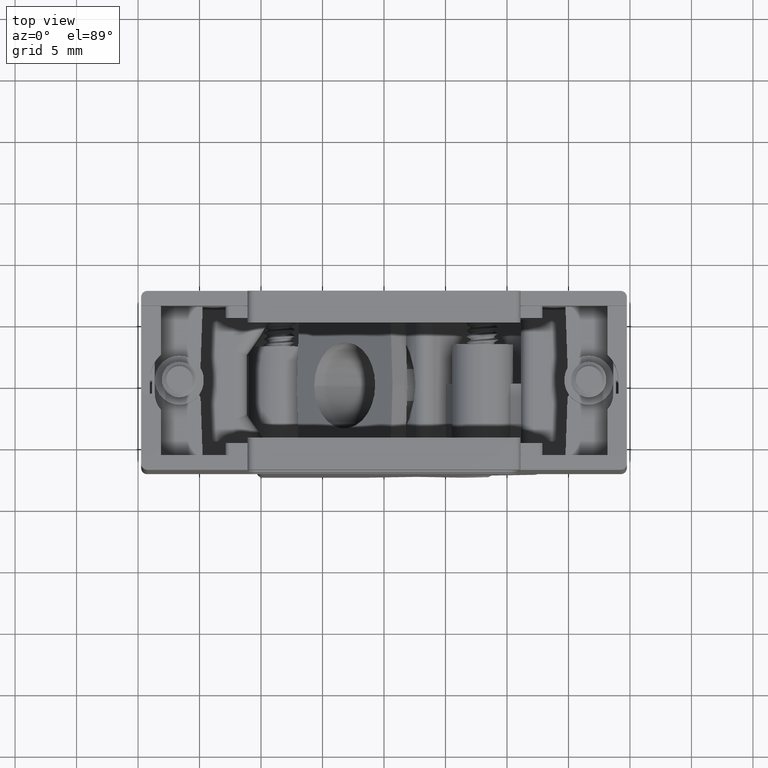
[diagram: clean part render]
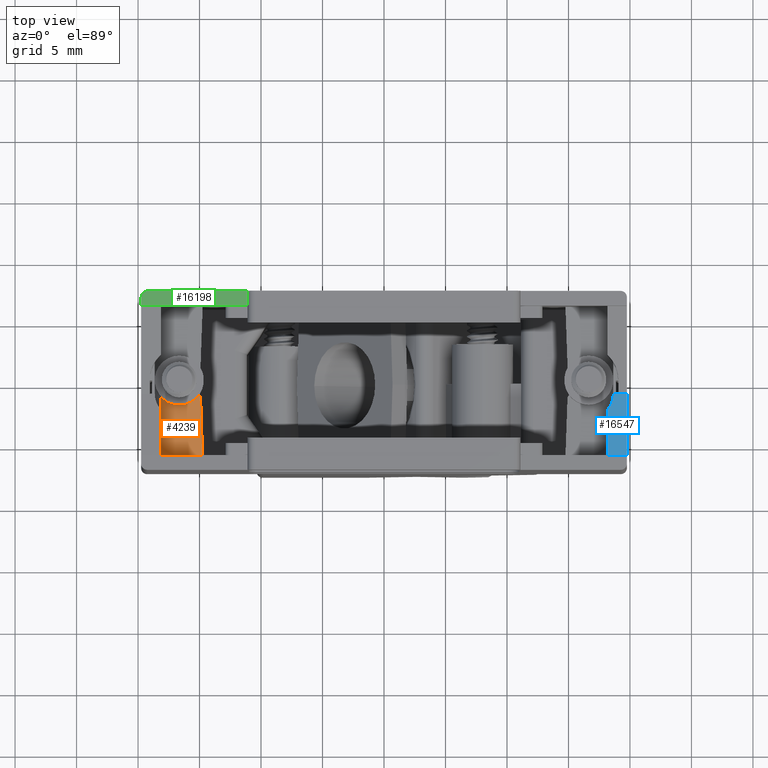
[diagram: same view with three faces highlighted in distinct colors, each labeled with its STEP entity id]
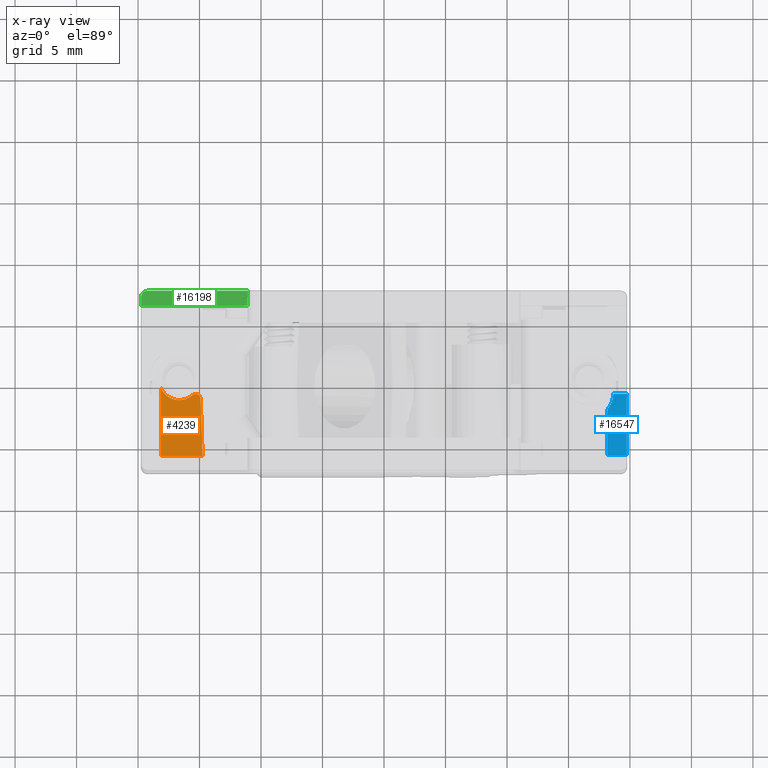
[diagram: x-ray of the same camera — body ghosted, the three highlighted faces saturated]
A machine part, top view with three faces highlighted in distinct colors.
The next image is the same camera in x-ray (body ghosted, the three faces saturated) — at least one of them is partly hidden behind the body in this view.
Their STEP definitions:

[orange] entity #4239 — the highlighted planar face has unit normal (-0, 0.0349, 0.9994).
#49 = AXIS2_PLACEMENT_3D ( 'NONE', #16739, #1539, #16954 ) ;
#364 = VERTEX_POINT ( 'NONE', #11180 ) ;
#439 = VECTOR ( 'NONE', #10934, 1000.000000000000000 ) ;
#567 = EDGE_CURVE ( 'NONE', #7004, #364, #17916, .T. ) ;
#825 = AXIS2_PLACEMENT_3D ( 'NONE', #6277, #13150, #3546 ) ;
#1382 = EDGE_CURVE ( 'NONE', #1838, #10347, #17587, .T. ) ;
#1440 = CARTESIAN_POINT ( 'NONE',  ( -14.91330625432113699, -1.473520738575691880, -5.163306254321136990 ) ) ;
#1518 = CARTESIAN_POINT ( 'NONE',  ( -18.14999999999999858, -1.149999999999999689, -5.174603847458740802 ) ) ;
#1521 = VECTOR ( 'NONE', #19870, 1000.000000000000000 ) ;
#1539 = DIRECTION ( 'NONE',  ( -2.549509896038091555E-16, 0.03489949670250105246, 0.9993908270190957621 ) ) ;
#1573 = CARTESIAN_POINT ( 'NONE',  ( -18.14999999999999858, -0.5574989676759432022, -5.195294439432151634 ) ) ;
#1741 = CARTESIAN_POINT ( 'NONE',  ( -15.58045006810301736, -1.189984429805355681, -5.173207560402246941 ) ) ;
#1790 = CARTESIAN_POINT ( 'NONE',  ( -18.14999999999999858, -1.149999999999999911, -5.174603847458739914 ) ) ;
#1838 = VERTEX_POINT ( 'NONE', #1741 ) ;
#1906 = VECTOR ( 'NONE', #4335, 1000.000000000000114 ) ;
#2705 = EDGE_CURVE ( 'NONE', #4343, #1838, #13568, .T. ) ;
#2899 = CARTESIAN_POINT ( 'NONE',  ( -16.23951330232864976, -1.782345993222722136, -5.152521838790378617 ) ) ;
#3029 = VECTOR ( 'NONE', #6708, 1000.000000000000114 ) ;
#3546 = DIRECTION ( 'NONE',  ( 0.000000000000000000, 0.9993908270190957621, -0.03489949670250123287 ) ) ;
#3767 = ORIENTED_EDGE ( 'NONE', *, *, #1382, .T. ) ;
#4239 = ADVANCED_FACE ( 'NONE', ( #9898 ), #10114, .T. ) ;
#4335 = DIRECTION ( 'NONE',  ( 0.000000000000000000, -0.9993908270190956511, 0.03489949670250108021 ) ) ;
#4343 = VERTEX_POINT ( 'NONE', #21827 ) ;
#4692 = VECTOR ( 'NONE', #19617, 1000.000000000000114 ) ;
#5129 = CIRCLE ( 'NONE', #825, 1.598366893769677555 ) ;
#5851 = LINE ( 'NONE', #18000, #439 ) ;
#6026 = LINE ( 'NONE', #14472, #1906 ) ;
#6277 = CARTESIAN_POINT ( 'NONE',  ( -16.65161118794322803, -0.001413901692397744568, -5.214713357839166008 ) ) ;
#6466 = ORIENTED_EDGE ( 'NONE', *, *, #13305, .F. ) ;
#6632 = CARTESIAN_POINT ( 'NONE',  ( -15.58045006810301736, -1.189984429805355681, -5.173207560402246941 ) ) ;
#6708 = DIRECTION ( 'NONE',  ( -0.000000000000000000, -0.9993908270190956511, 0.03489949670250049041 ) ) ;
#6910 = VERTEX_POINT ( 'NONE', #1573 ) ;
#7004 = VERTEX_POINT ( 'NONE', #1790 ) ;
#7006 = CARTESIAN_POINT ( 'NONE',  ( -17.76242977306434767, -1.149999999999999911, -5.174603847458739914 ) ) ;
#7233 = VERTEX_POINT ( 'NONE', #20259 ) ;
#7831 = LINE ( 'NONE', #9630, #1521 ) ;
#9630 = CARTESIAN_POINT ( 'NONE',  ( -18.14999999999999858, -6.149999999999999467, -5.000000000000000888 ) ) ;
#9898 = FACE_OUTER_BOUND ( 'NONE', #14442, .T. ) ;
#10114 = PLANE ( 'NONE',  #49 ) ;
#10213 = ORIENTED_EDGE ( 'NONE', *, *, #18774, .T. ) ;
#10347 = VERTEX_POINT ( 'NONE', #7006 ) ;
#10398 = ORIENTED_EDGE ( 'NONE', *, *, #17134, .T. ) ;
#10934 = DIRECTION ( 'NONE',  ( 0.03487826274237469659, -0.9987827659587182882, 0.03487826274237470353 ) ) ;
#11180 = CARTESIAN_POINT ( 'NONE',  ( -18.14999999999999858, -2.448762688056414838, -5.129250055004639819 ) ) ;
#11490 = CARTESIAN_POINT ( 'NONE',  ( -15.58045006810301736, -1.189984429805355681, -5.173207560402246941 ) ) ;
#11605 = CARTESIAN_POINT ( 'NONE',  ( -15.28840162296907934, -0.9274932687615800031, -5.182373953730678551 ) ) ;
#12520 = CARTESIAN_POINT ( 'NONE',  ( -18.14999999999999858, -1.149999999999999245, -5.174603847458740802 ) ) ;
#13150 = DIRECTION ( 'NONE',  ( 2.549509896038091555E-16, -0.03489949670250105246, -0.9993908270190957621 ) ) ;
#13265 = CARTESIAN_POINT ( 'NONE',  ( -17.12551159130002532, -1.766110216000555511, -5.153088804624271546 ) ) ;
#13305 = EDGE_CURVE ( 'NONE', #4343, #7233, #5851, .T. ) ;
#13568 =( BOUNDED_CURVE ( )  B_SPLINE_CURVE ( 3, ( #1440, #14848, #11605, #6632 ),
 .UNSPECIFIED., .F., .F. ) 
 B_SPLINE_CURVE_WITH_KNOTS ( ( 4, 4 ),
 ( 4.747295565424573205, 7.015333276903126247 ),
 .UNSPECIFIED. ) 
 CURVE ( )  GEOMETRIC_REPRESENTATION_ITEM ( )  RATIONAL_B_SPLINE_CURVE ( ( 1.000000000000000000, 0.6153477800444729917, 0.6153477800444729917, 1.000000000000000000 ) ) 
 REPRESENTATION_ITEM ( '' )  );
#14162 = EDGE_CURVE ( 'NONE', #6910, #7004, #17047, .T. ) ;
#14442 = EDGE_LOOP ( 'NONE', ( #6466, #17566, #3767, #17673, #18832, #18019, #10213, #10398 ) ) ;
#14472 = CARTESIAN_POINT ( 'NONE',  ( -18.14999999999999858, -1.149999999999999245, -5.174603847458740802 ) ) ;
#14848 = CARTESIAN_POINT ( 'NONE',  ( -14.92701042522305954, -1.081084629595960633, -5.177010425223057766 ) ) ;
#15415 = VERTEX_POINT ( 'NONE', #21614 ) ;
#16739 = CARTESIAN_POINT ( 'NONE',  ( -18.14999999999999858, -6.149999999999999467, -5.000000000000000888 ) ) ;
#16954 = DIRECTION ( 'NONE',  ( 0.000000000000000000, -0.9993908270190956511, 0.03489949670250104552 ) ) ;
#17047 = LINE ( 'NONE', #1518, #3029 ) ;
#17134 = EDGE_CURVE ( 'NONE', #15415, #7233, #7831, .T. ) ;
#17566 = ORIENTED_EDGE ( 'NONE', *, *, #2705, .T. ) ;
#17587 =( BOUNDED_CURVE ( )  B_SPLINE_CURVE ( 3, ( #11490, #2899, #13265, #21840 ),
 .UNSPECIFIED., .F., .F. ) 
 B_SPLINE_CURVE_WITH_KNOTS ( ( 4, 4 ),
 ( 2.409444683866252657, 3.910386202581079385 ),
 .UNSPECIFIED. ) 
 CURVE ( )  GEOMETRIC_REPRESENTATION_ITEM ( )  RATIONAL_B_SPLINE_CURVE ( ( 1.000000000000000000, 0.8209119333230887605, 0.8209119333230887605, 1.000000000000000000 ) ) 
 REPRESENTATION_ITEM ( '' )  );
#17673 = ORIENTED_EDGE ( 'NONE', *, *, #19890, .T. ) ;
#17916 = LINE ( 'NONE', #12520, #4692 ) ;
#18000 = CARTESIAN_POINT ( 'NONE',  ( -14.75000000000000000, -6.149999999999999467, -5.000000000000000000 ) ) ;
#18019 = ORIENTED_EDGE ( 'NONE', *, *, #567, .T. ) ;
#18774 = EDGE_CURVE ( 'NONE', #364, #15415, #6026, .T. ) ;
#18832 = ORIENTED_EDGE ( 'NONE', *, *, #14162, .T. ) ;
#19617 = DIRECTION ( 'NONE',  ( 0.000000000000000000, -0.9993908270190956511, 0.03489949670250108021 ) ) ;
#19870 = DIRECTION ( 'NONE',  ( 1.000000000000000000, 0.000000000000000000, 2.551063935260010491E-16 ) ) ;
#19890 = EDGE_CURVE ( 'NONE', #10347, #6910, #5129, .T. ) ;
#20259 = CARTESIAN_POINT ( 'NONE',  ( -14.75000000000000000, -6.149999999999999467, -4.999999999999999112 ) ) ;
#21614 = CARTESIAN_POINT ( 'NONE',  ( -18.14999999999999858, -6.149999999999999467, -5.000000000000000888 ) ) ;
#21827 = CARTESIAN_POINT ( 'NONE',  ( -14.91330625432113699, -1.473520738575691880, -5.163306254321136990 ) ) ;
#21840 = CARTESIAN_POINT ( 'NONE',  ( -17.76242977306434767, -1.149999999999999911, -5.174603847458739914 ) ) ;

[blue] entity #16547 — the highlighted planar face has unit normal (0, -0.0436, -0.999).
#12 = DIRECTION ( 'NONE',  ( 0.000000000000000000, 0.9990482215818580203, -0.04361938736532859628 ) ) ;
#208 = VECTOR ( 'NONE', #12, 1000.000000000000114 ) ;
#562 = ORIENTED_EDGE ( 'NONE', *, *, #12390, .T. ) ;
#983 = CARTESIAN_POINT ( 'NONE',  ( 16.65013255288458183, -1.126995974395647249, -1.219309091991100935 ) ) ;
#1432 = LINE ( 'NONE', #3333, #8291 ) ;
#2680 = DIRECTION ( 'NONE',  ( 0.000000000000000000, -0.9990482215818581313, 0.04361938736532856853 ) ) ;
#2946 = EDGE_CURVE ( 'NONE', #17761, #13256, #5831, .T. ) ;
#3333 = CARTESIAN_POINT ( 'NONE',  ( 19.75000000000000000, -6.150000000000003020, -1.000000000000000000 ) ) ;
#4322 = VECTOR ( 'NONE', #14386, 1000.000000000000000 ) ;
#4536 = CARTESIAN_POINT ( 'NONE',  ( 18.14999999999999858, -6.149999999999999467, -1.000000000000000000 ) ) ;
#5485 = LINE ( 'NONE', #8986, #18990 ) ;
#5831 = LINE ( 'NONE', #12589, #4322 ) ;
#6549 = VERTEX_POINT ( 'NONE', #20971 ) ;
#7262 = VERTEX_POINT ( 'NONE', #14947 ) ;
#7305 = EDGE_CURVE ( 'NONE', #13256, #18120, #1432, .T. ) ;
#8098 = DIRECTION ( 'NONE',  ( 0.000000000000000000, 0.04361938736532861016, 0.9990482215818581313 ) ) ;
#8291 = VECTOR ( 'NONE', #10226, 1000.000000000000114 ) ;
#8986 = CARTESIAN_POINT ( 'NONE',  ( -19.75000000000000000, -1.149999999999999911, -1.218304714542523426 ) ) ;
#9475 = ORIENTED_EDGE ( 'NONE', *, *, #10757, .F. ) ;
#10215 = AXIS2_PLACEMENT_3D ( 'NONE', #17330, #14184, #15644 ) ;
#10226 = DIRECTION ( 'NONE',  ( 0.000000000000000000, 0.9990482215818580203, -0.04361938736532859628 ) ) ;
#10704 = CARTESIAN_POINT ( 'NONE',  ( 19.75000000000000000, -6.150000000000003020, -1.000000000000000000 ) ) ;
#10757 = EDGE_CURVE ( 'NONE', #17761, #6549, #13634, .T. ) ;
#10784 = DIRECTION ( 'NONE',  ( -1.000000000000000000, 0.000000000000000000, 0.000000000000000000 ) ) ;
#12159 = PLANE ( 'NONE',  #10215 ) ;
#12390 = EDGE_CURVE ( 'NONE', #18120, #7262, #5485, .T. ) ;
#12473 = CIRCLE ( 'NONE', #14619, 2.000000000000000000 ) ;
#12589 = CARTESIAN_POINT ( 'NONE',  ( -19.75000000000000000, -6.150000000000003020, -1.000000000000000000 ) ) ;
#12635 = ORIENTED_EDGE ( 'NONE', *, *, #13372, .F. ) ;
#13256 = VERTEX_POINT ( 'NONE', #10704 ) ;
#13298 = ORIENTED_EDGE ( 'NONE', *, *, #2946, .T. ) ;
#13372 = EDGE_CURVE ( 'NONE', #6549, #7262, #12473, .T. ) ;
#13634 = LINE ( 'NONE', #18811, #208 ) ;
#14184 = DIRECTION ( 'NONE',  ( 0.000000000000000000, -0.04361938736532860322, -0.9990482215818581313 ) ) ;
#14386 = DIRECTION ( 'NONE',  ( 1.000000000000000000, -0.000000000000000000, 0.000000000000000000 ) ) ;
#14619 = AXIS2_PLACEMENT_3D ( 'NONE', #983, #8098, #2680 ) ;
#14947 = CARTESIAN_POINT ( 'NONE',  ( 18.64999999999999858, -1.149999999999995248, -1.218304714542523870 ) ) ;
#15644 = DIRECTION ( 'NONE',  ( 0.000000000000000000, 0.9990482215818580203, -0.04361938736532859628 ) ) ;
#16151 = EDGE_LOOP ( 'NONE', ( #562, #12635, #9475, #13298, #18996 ) ) ;
#16532 = CARTESIAN_POINT ( 'NONE',  ( 19.75000000000000000, -1.149999999999999911, -1.218304714542522316 ) ) ;
#16547 = ADVANCED_FACE ( 'NONE', ( #18792 ), #12159, .F. ) ;
#17330 = CARTESIAN_POINT ( 'NONE',  ( -19.75000000000000000, -6.150000000000003020, -1.000000000000000000 ) ) ;
#17761 = VERTEX_POINT ( 'NONE', #4536 ) ;
#18120 = VERTEX_POINT ( 'NONE', #16532 ) ;
#18792 = FACE_OUTER_BOUND ( 'NONE', #16151, .T. ) ;
#18811 = CARTESIAN_POINT ( 'NONE',  ( 18.14999999999999858, -6.193577871373820543, -0.9980973490458734387 ) ) ;
#18990 = VECTOR ( 'NONE', #10784, 1000.000000000000000 ) ;
#18996 = ORIENTED_EDGE ( 'NONE', *, *, #7305, .T. ) ;
#20971 = CARTESIAN_POINT ( 'NONE',  ( 18.14999999999999858, -2.448762688056410841, -1.161599510967596505 ) ) ;

[green] entity #16198 — the highlighted planar face has unit normal (-0, 0, 1).
#322 = DIRECTION ( 'NONE',  ( 0.000000000000000000, 0.000000000000000000, 1.000000000000000000 ) ) ;
#423 = EDGE_LOOP ( 'NONE', ( #21650, #16291, #6883, #3235, #10860 ) ) ;
#884 = VERTEX_POINT ( 'NONE', #18139 ) ;
#1318 = DIRECTION ( 'NONE',  ( 1.000000000000000000, 0.000000000000000000, 0.000000000000000000 ) ) ;
#1358 = EDGE_CURVE ( 'NONE', #884, #13380, #2682, .T. ) ;
#1609 = EDGE_CURVE ( 'NONE', #13001, #10662, #12136, .T. ) ;
#1689 = CARTESIAN_POINT ( 'NONE',  ( 11.10000000000000142, -8.349999999999996092, 0.000000000000000000 ) ) ;
#2682 = LINE ( 'NONE', #9574, #21224 ) ;
#3235 = ORIENTED_EDGE ( 'NONE', *, *, #16731, .F. ) ;
#3446 = AXIS2_PLACEMENT_3D ( 'NONE', #10944, #20955, #21291 ) ;
#4051 = CARTESIAN_POINT ( 'NONE',  ( 19.24999999999999645, -7.849999999999999645, 0.000000000000000000 ) ) ;
#5634 = DIRECTION ( 'NONE',  ( 0.000000000000000000, 1.000000000000000000, 0.000000000000000000 ) ) ;
#6625 = CARTESIAN_POINT ( 'NONE',  ( -18.14999999999999147, -7.149999999999999467, 0.000000000000000000 ) ) ;
#6883 = ORIENTED_EDGE ( 'NONE', *, *, #1358, .T. ) ;
#7327 = DIRECTION ( 'NONE',  ( 1.000000000000000000, 0.000000000000000000, 0.000000000000000000 ) ) ;
#8566 = DIRECTION ( 'NONE',  ( 0.000000000000000000, 1.000000000000000000, 0.000000000000000000 ) ) ;
#9574 = CARTESIAN_POINT ( 'NONE',  ( 19.74999999999999645, -8.349999999999999645, 0.000000000000000000 ) ) ;
#9626 = CARTESIAN_POINT ( 'NONE',  ( 11.10000000000000142, -8.349999999999999645, 0.000000000000000000 ) ) ;
#10569 = DIRECTION ( 'NONE',  ( 1.000000000000000000, 0.000000000000000000, 0.000000000000000000 ) ) ;
#10578 = VECTOR ( 'NONE', #1318, 1000.000000000000000 ) ;
#10662 = VERTEX_POINT ( 'NONE', #18377 ) ;
#10860 = ORIENTED_EDGE ( 'NONE', *, *, #17713, .F. ) ;
#10944 = CARTESIAN_POINT ( 'NONE',  ( -19.74999999999999645, -8.349999999999999645, 0.000000000000000000 ) ) ;
#11267 = VECTOR ( 'NONE', #8566, 1000.000000000000000 ) ;
#11489 = LINE ( 'NONE', #6625, #10578 ) ;
#11920 = CARTESIAN_POINT ( 'NONE',  ( -19.74999999999999645, -8.349999999999999645, 0.000000000000000000 ) ) ;
#12136 = LINE ( 'NONE', #11920, #12583 ) ;
#12583 = VECTOR ( 'NONE', #10569, 1000.000000000000000 ) ;
#12623 = FACE_OUTER_BOUND ( 'NONE', #423, .T. ) ;
#13001 = VERTEX_POINT ( 'NONE', #9626 ) ;
#13165 = CARTESIAN_POINT ( 'NONE',  ( 19.75000000000000000, -7.150000000000010125, -7.209944447028604486E-15 ) ) ;
#13309 = EDGE_CURVE ( 'NONE', #10662, #884, #22030, .T. ) ;
#13380 = VERTEX_POINT ( 'NONE', #13165 ) ;
#15177 = AXIS2_PLACEMENT_3D ( 'NONE', #4051, #322, #7327 ) ;
#16198 = ADVANCED_FACE ( 'NONE', ( #12623 ), #19489, .T. ) ;
#16291 = ORIENTED_EDGE ( 'NONE', *, *, #13309, .T. ) ;
#16731 = EDGE_CURVE ( 'NONE', #21218, #13380, #11489, .T. ) ;
#17112 = LINE ( 'NONE', #1689, #11267 ) ;
#17713 = EDGE_CURVE ( 'NONE', #13001, #21218, #17112, .T. ) ;
#18139 = CARTESIAN_POINT ( 'NONE',  ( 19.74999999999999645, -7.849999999999999645, 0.000000000000000000 ) ) ;
#18377 = CARTESIAN_POINT ( 'NONE',  ( 19.24999999999999645, -8.349999999999999645, 0.000000000000000000 ) ) ;
#18579 = CARTESIAN_POINT ( 'NONE',  ( 11.10000000000000142, -7.149999999999999467, 4.878909776184769953E-15 ) ) ;
#19489 = PLANE ( 'NONE',  #3446 ) ;
#20955 = DIRECTION ( 'NONE',  ( 0.000000000000000000, 0.000000000000000000, 1.000000000000000000 ) ) ;
#21218 = VERTEX_POINT ( 'NONE', #18579 ) ;
#21224 = VECTOR ( 'NONE', #5634, 1000.000000000000000 ) ;
#21291 = DIRECTION ( 'NONE',  ( 1.000000000000000000, 0.000000000000000000, -0.000000000000000000 ) ) ;
#21650 = ORIENTED_EDGE ( 'NONE', *, *, #1609, .T. ) ;
#22030 = CIRCLE ( 'NONE', #15177, 0.5000000000000004441 ) ;